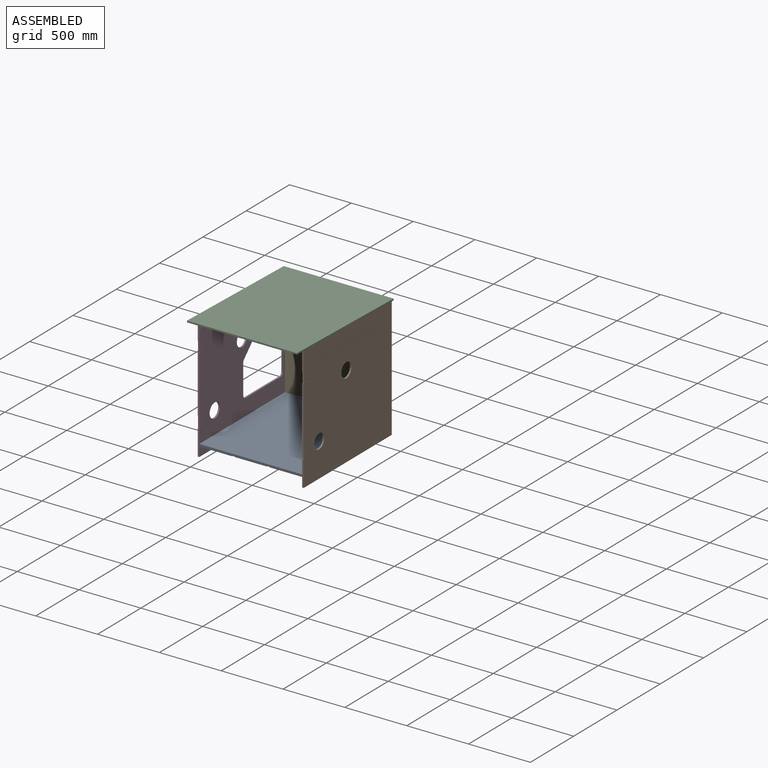
[diagram: assembled view]
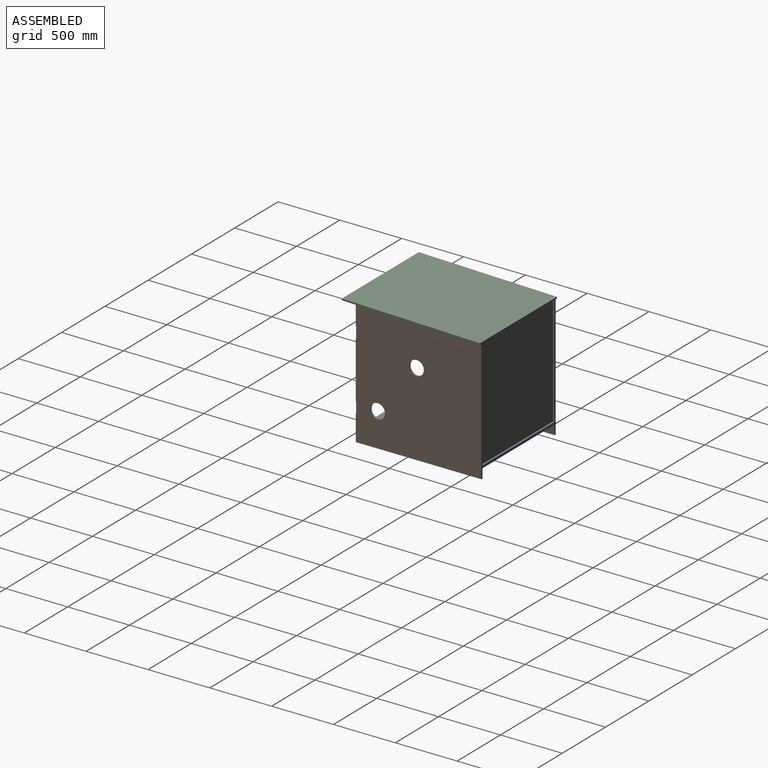
[diagram: assembled view, second angle]
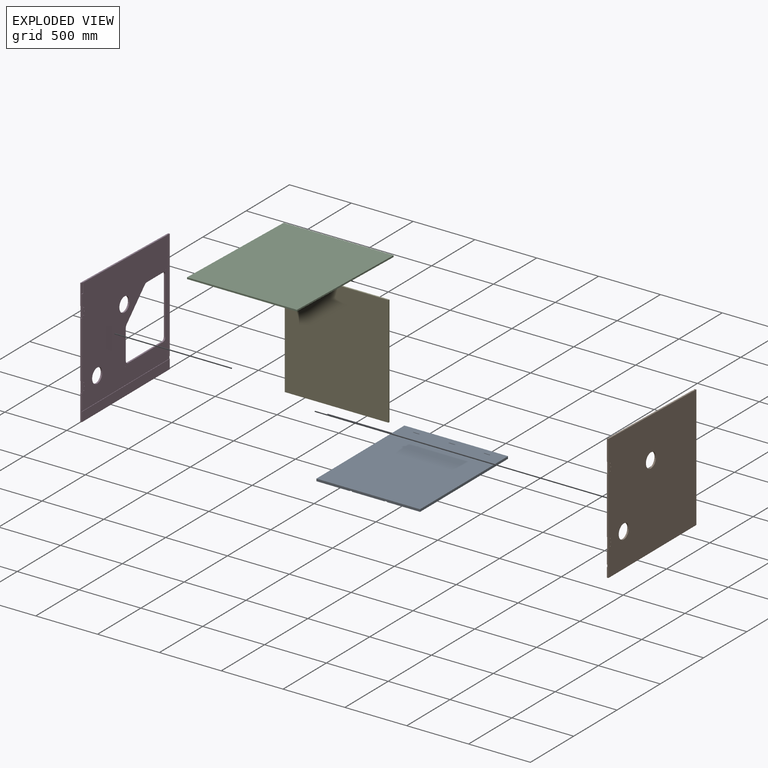
[diagram: exploded view]
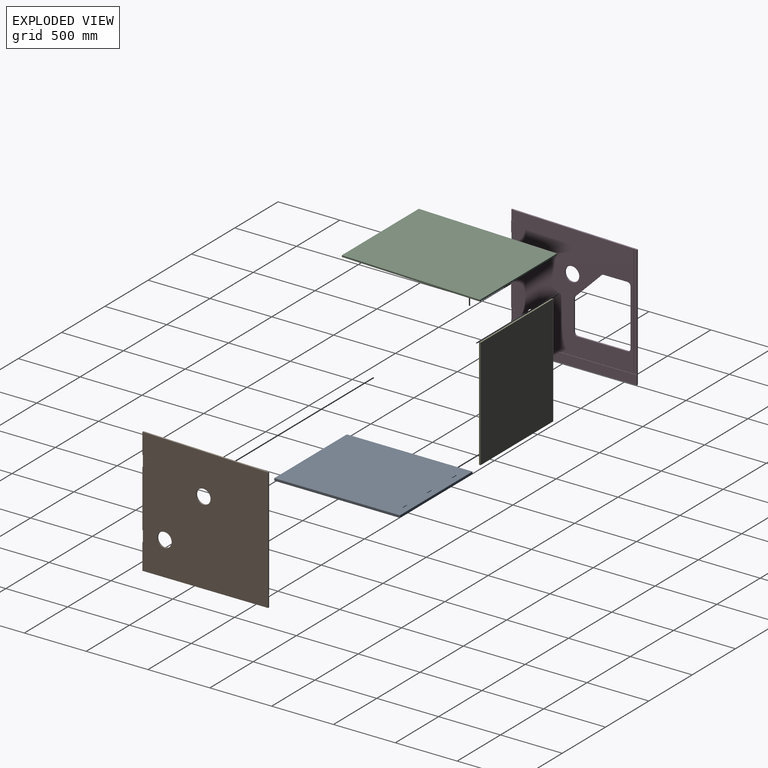
[diagram: exploded view, second angle]
ASSEMBLY  parts=5 mates=4
PART A: 26 faces, bbox 838.2x1016x19.1 mm
  f0: plane 1016x261.93mm, normal (0,0,-1), area 265801.7mm2, adj f2,f4,f9,f11,f18,f19,f20,f21
  f1: plane 1016x268.3mm, normal (0,0,-1), area 272279.1mm2, adj f2,f3,f4,f8,f22,f23,f24,f25
  f2: plane 838.2x19.05mm, normal (0,1,0), area 15841.7mm2, adj f0,f1,f3,f5,f6,f7,f8,f9
  f3: plane 1016x19.05mm, normal (-1,0,0), area 19354.8mm2, adj f1,f2,f4,f6
  f4: plane 838.2x19.05mm, normal (0,-1,0), area 15841.7mm2, adj f0,f1,f3,f5,f6,f7,f8,f9
  f5: plane 1016x19.05mm, normal (1,0,0), area 19354.8mm2, adj f2,f4,f6,f7
  f6: plane 1016x838.2mm, normal (0,0,1), area 850669.4mm2, adj f2,f3,f4,f5,f14,f15,f16,f17
  f7: plane 1016x268.3mm, normal (0,0,-1), area 272279.1mm2, adj f2,f4,f5,f12,f14,f15,f16,f17
  f8: plane 1016x3.18mm, normal (1,0,0), area 3225.8mm2, adj f1,f2,f4,f10
  f9: plane 1016x3.18mm, normal (-1,0,0), area 3225.8mm2, adj f0,f2,f4,f10
  f10: plane 1016x19.84mm, normal (0,0,-1), area 20154.8mm2, adj f2,f4,f8,f9
  f11: plane 1016x3.18mm, normal (1,0,0), area 3225.8mm2, adj f0,f2,f4,f13
  f12: plane 1016x3.18mm, normal (-1,0,0), area 3225.8mm2, adj f2,f4,f7,f13
  f13: plane 1016x19.84mm, normal (0,0,-1), area 20154.8mm2, adj f2,f4,f11,f12
  f14: plane 44.45x19.05mm, normal (0,-1,0), area 846.8mm2, adj f6,f7,f15,f17
  f15: cylinder r=3.17mm len=19.05mm, axis (0,0,-1), area 190mm2, adj f6,f7,f14,f16
  f16: plane 44.45x19.05mm, normal (0,1,0), area 846.8mm2, adj f6,f7,f15,f17
  f17: cylinder r=3.17mm len=19.05mm, axis (0,0,-1), area 190mm2, adj f6,f7,f14,f16
  f18: plane 44.45x19.05mm, normal (0,-1,0), area 846.8mm2, adj f0,f6,f19,f21
  f19: cylinder r=3.17mm len=19.05mm, axis (0,0,-1), area 190mm2, adj f0,f6,f18,f20
  f20: plane 44.45x19.05mm, normal (0,1,0), area 846.8mm2, adj f0,f6,f19,f21
  f21: cylinder r=3.17mm len=19.05mm, axis (0,0,-1), area 190mm2, adj f0,f6,f18,f20
  f22: plane 44.45x19.05mm, normal (0,-1,0), area 846.8mm2, adj f1,f6,f23,f25
  f23: cylinder r=3.17mm len=19.05mm, axis (0,0,-1), area 190mm2, adj f1,f6,f22,f24
  f24: plane 44.45x19.05mm, normal (0,1,0), area 846.8mm2, adj f1,f6,f23,f25
  f25: cylinder r=3.17mm len=19.05mm, axis (0,0,-1), area 190mm2, adj f1,f6,f22,f24
PART B: 30 faces, bbox 12.7x1016x1016 mm
  f0: plane 209.55x12.7mm, normal (0,-1,0), area 2598.3mm2, adj f2,f3,f5,f8,f10,f14,f15,f28
  f1: plane 460.38x12.7mm, normal (0,-1,0), area 5846.8mm2, adj f2,f3,f19,f27
  f2: plane 1016x1016mm, normal (1,0,0), area 996895.6mm2, adj f0,f1,f6,f7,f8,f9,f16,f17
  f3: plane 989.85x919.96mm, normal (-1,0,0), area 875894mm2, adj f0,f1,f6,f7,f10,f11,f16,f17
  f4: plane 894.88x12.7mm, normal (-1,0,0), area 11363mm2, adj f6,f9,f12,f13
  f5: plane 1016x76.2mm, normal (-1,0,0), area 77419.2mm2, adj f0,f8,f9,f14
  f6: plane 1016x25.4mm, normal (0,0.02,1), area 12864.3mm2, adj f2,f3,f4,f7,f9,f11,f12,f15
  f7: plane 168.28x12.7mm, normal (0,-1,0), area 2137.1mm2, adj f2,f3,f6,f18
  f8: plane 1016x12.7mm, normal (0,0,-1), area 12903.2mm2, adj f0,f2,f5,f9
  f9: plane 990.6x12.7mm, normal (0,1,0), area 12517.6mm2, adj f2,f4,f5,f6,f8,f13,f14,f15
  f10: plane 989.85x3.18mm, normal (0,0,-1), area 3142.8mm2, adj f0,f3,f11,f15
  f11: plane 895.22x3.18mm, normal (0,1,0), area 2842.3mm2, adj f3,f6,f10,f15
  f12: plane 894.88x3.18mm, normal (0,-1,0), area 2841.2mm2, adj f4,f6,f13,f15
  f13: plane 12.7x3.18mm, normal (0,0,-1), area 40.3mm2, adj f4,f9,f12,f15
  f14: plane 1016x3.18mm, normal (0,0,1), area 3225.8mm2, adj f0,f5,f9,f15
  f15: plane 1016x915.06mm, normal (-1,0,0), area 32219.4mm2, adj f0,f6,f9,f10,f11,f12,f13,f14
  f16: cylinder r=58.74mm len=117.48mm, axis (1,0,0), area 4687mm2, adj f2,f3
  f17: cylinder r=58.74mm len=117.48mm, axis (1,0,0), area 4687mm2, adj f2,f3
  f18: plane 12.7x3.18mm, normal (0,0,-1), area 40.3mm2, adj f2,f3,f7,f20
  f19: plane 12.7x3.18mm, normal (0,0,1), area 40.3mm2, adj f1,f2,f3,f20
  f20: plane 88.9x12.7mm, normal (0,-1,0), area 1129mm2, adj f2,f3,f18,f19
  f21: cylinder r=3.38mm len=12.7mm, axis (1,0,0), area 269.6mm2, adj f2,f3
  f22: cylinder r=3.38mm len=12.7mm, axis (1,0,0), area 269.6mm2, adj f2,f3
  f23: cylinder r=3.38mm len=12.7mm, axis (1,0,0), area 269.6mm2, adj f2,f3
  f24: cylinder r=3.38mm len=12.7mm, axis (1,0,0), area 269.6mm2, adj f2,f3
  f25: cylinder r=3.38mm len=12.7mm, axis (1,0,0), area 269.6mm2, adj f2,f3
  f26: cylinder r=3.38mm len=12.7mm, axis (1,0,0), area 269.6mm2, adj f2,f3
  f27: plane 12.7x3.18mm, normal (0,0,-1), area 40.3mm2, adj f1,f2,f3,f29
  f28: plane 12.7x3.18mm, normal (0,0,1), area 40.3mm2, adj f0,f2,f3,f29
  f29: plane 88.9x12.7mm, normal (0,-1,0), area 1129mm2, adj f2,f3,f27,f28
PART C: 19 faces, bbox 889x1117.6x12.7 mm
  f0: plane 1117.6x889mm, normal (0,0,1), area 120980.4mm2, adj f2,f3,f4,f5,f10,f11,f15
  f1: plane 831.85x12.47mm, normal (0,0,1), area 10374.3mm2, adj f4,f12,f13,f14
  f2: plane 889x12.7mm, normal (0,1,0), area 11290.3mm2, adj f0,f3,f5,f6
  f3: plane 1117.6x12.7mm, normal (-1,0,0), area 14193.5mm2, adj f0,f2,f4,f6
  f4: plane 889x12.7mm, normal (0,-1,0), area 11204.7mm2, adj f0,f1,f3,f5,f6,f11,f12,f14
  f5: plane 1117.6x12.7mm, normal (1,0,0), area 14193.5mm2, adj f0,f2,f4,f6
  f6: plane 1117.6x889mm, normal (0,0,-1), area 993546.4mm2, adj f2,f3,f4,f5
  f7: plane 970.2x3.18mm, normal (-1,0,0), area 3080.4mm2, adj f8,f16,f17,f18
  f8: plane 831.85x3.18mm, normal (0,1,0), area 2641.1mm2, adj f7,f9,f17,f18
  f9: plane 970.2x3.18mm, normal (1,0,0), area 3080.4mm2, adj f8,f16,f17,f18
  f10: plane 858.82x3.18mm, normal (0,-1,0), area 2726.8mm2, adj f0,f11,f15,f17
  f11: plane 1016x3.18mm, normal (1,0,0), area 3225.8mm2, adj f0,f4,f10,f17
  f12: plane 12.47x3.18mm, normal (-1,0,0), area 39.6mm2, adj f1,f4,f13,f17
  f13: plane 831.85x3.18mm, normal (0,1,0), area 2641.1mm2, adj f1,f12,f14,f17
  f14: plane 12.47x3.18mm, normal (1,0,0), area 39.6mm2, adj f1,f4,f13,f17
  f15: plane 1016x3.18mm, normal (-1,0,0), area 3225.8mm2, adj f0,f4,f10,f17
  f16: plane 831.85x3.18mm, normal (0,-1,0), area 2641.1mm2, adj f7,f9,f17,f18
  f17: plane 1016x858.83mm, normal (0,0,1), area 55127.6mm2, adj f4,f7,f8,f9,f10,f11,f12,f13
  f18: plane 970.2x831.85mm, normal (0,0,1), area 807064mm2, adj f7,f8,f9,f16
PART D: 48 faces, bbox 12.7x1016x1016 mm
  f0: plane 460.38x12.7mm, normal (0,-1,0), area 5846.8mm2, adj f2,f3,f38,f42
  f1: plane 168.28x12.7mm, normal (0,-1,0), area 1883.5mm2, adj f2,f3,f4,f17,f18,f36
  f2: plane 1016x1016mm, normal (-1,0,0), area 791170.5mm2, adj f0,f1,f4,f5,f7,f8,f19,f20
  f3: plane 989.81x919.47mm, normal (1,0,0), area 668582.1mm2, adj f0,f1,f4,f5,f13,f14,f16,f17
  f4: plane 1016x25.4mm, normal (0,0.02,1), area 12801.4mm2, adj f1,f2,f3,f6,f8,f10,f11,f13
  f5: plane 209.55x12.7mm, normal (0,-1,0), area 2598.3mm2, adj f2,f3,f7,f9,f10,f14,f15,f44
  f6: plane 894.88x12.7mm, normal (1,0,0), area 11363mm2, adj f4,f8,f11,f12
  f7: plane 1016x12.7mm, normal (0,0,-1), area 12903.2mm2, adj f2,f5,f8,f9
  f8: plane 990.6x12.7mm, normal (0,1,0), area 12517.6mm2, adj f2,f4,f6,f7,f9,f10,f12,f15
  f9: plane 1016x76.2mm, normal (1,0,0), area 77419.2mm2, adj f5,f7,f8,f15
  f10: plane 1016x915.05mm, normal (1,0,0), area 32226.7mm2, adj f4,f5,f8,f11,f12,f13,f14,f15
  f11: plane 894.88x3.18mm, normal (0,-1,0), area 2841.2mm2, adj f4,f6,f10,f12
  f12: plane 12.7x3.18mm, normal (0,0,-1), area 40.3mm2, adj f6,f8,f10,f11
  f13: plane 895.22x3.18mm, normal (0,1,0), area 2842.3mm2, adj f3,f4,f10,f14
  f14: plane 989.81x3.18mm, normal (0,0,-1), area 3142.7mm2, adj f3,f5,f10,f13
  f15: plane 1016x3.18mm, normal (0,0,1), area 3225.8mm2, adj f5,f8,f9,f10
  f16: plane 79.38x3.18mm, normal (0,-1,0), area 252mm2, adj f3,f4,f17,f18
  f17: plane 19.84x3.18mm, normal (0,0,1), area 63mm2, adj f1,f3,f16,f18
  f18: plane 79.87x19.84mm, normal (1,0,0), area 1579.5mm2, adj f1,f4,f16,f17
  f19: cylinder r=58.74mm len=117.48mm, axis (-1,0,0), area 4687mm2, adj f2,f3
  f20: cylinder r=58.74mm len=117.48mm, axis (-1,0,0), area 4687mm2, adj f2,f3
  f21: plane 213.72x213.72mm, normal (0,0.71,-0.71), area 3838.5mm2, adj f2,f3,f22,f30
  f22: cylinder r=25.4mm len=17.96mm, axis (-1,0,0), area 253.4mm2, adj f2,f3,f21,f23
  f23: plane 192.68x12.7mm, normal (0,0,-1), area 2447mm2, adj f2,f3,f22,f24
  f24: cylinder r=25.4mm len=25.4mm, axis (-1,0,0), area 506.7mm2, adj f2,f3,f23,f25
  f25: plane 457.2x12.7mm, normal (0,-1,0), area 5806.4mm2, adj f2,f3,f24,f26
  f26: cylinder r=25.4mm len=25.4mm, axis (-1,0,0), area 506.7mm2, adj f2,f3,f25,f27
  f27: plane 406.4x12.7mm, normal (0,0,1), area 5161.3mm2, adj f2,f3,f26,f28
  f28: cylinder r=25.4mm len=25.4mm, axis (-1,0,0), area 506.7mm2, adj f2,f3,f27,f29
  f29: plane 243.48x12.7mm, normal (0,1,0), area 3092.2mm2, adj f2,f3,f28,f30
  f30: cylinder r=25.4mm len=17.96mm, axis (-1,0,0), area 253.4mm2, adj f2,f3,f21,f29
  f31: cylinder r=1.59mm len=12.7mm, axis (-1,0,0), area 126.7mm2, adj f2,f3
  f32: cylinder r=1.59mm len=12.7mm, axis (-1,0,0), area 126.7mm2, adj f2,f3
  f33: cylinder r=1.59mm len=12.7mm, axis (-1,0,0), area 126.7mm2, adj f2,f3
  f34: cylinder r=1.59mm len=12.7mm, axis (-1,0,0), area 126.7mm2, adj f2,f3
  f35: cylinder r=1.59mm len=12.7mm, axis (-1,0,0), area 126.7mm2, adj f2,f3
  f36: plane 12.7x3.18mm, normal (0,0,-1), area 40.3mm2, adj f1,f2,f3,f37
  f37: plane 88.9x12.7mm, normal (0,-1,0), area 1129mm2, adj f2,f3,f36,f38
  f38: plane 12.7x3.18mm, normal (0,0,1), area 40.3mm2, adj f0,f2,f3,f37
  f39: cylinder r=3.38mm len=12.7mm, axis (-1,0,0), area 269.6mm2, adj f2,f3
  f40: cylinder r=3.38mm len=12.7mm, axis (-1,0,0), area 269.6mm2, adj f2,f3
  f41: cylinder r=3.38mm len=12.7mm, axis (-1,0,0), area 269.6mm2, adj f2,f3
  f42: plane 12.7x3.18mm, normal (0,0,-1), area 40.3mm2, adj f0,f2,f3,f43
  f43: plane 88.9x12.7mm, normal (0,-1,0), area 1129mm2, adj f2,f3,f42,f44
  f44: plane 12.7x3.18mm, normal (0,0,1), area 40.3mm2, adj f2,f3,f5,f43
  f45: cylinder r=3.38mm len=12.7mm, axis (-1,0,0), area 269.6mm2, adj f2,f3
  f46: cylinder r=3.38mm len=12.7mm, axis (-1,0,0), area 269.6mm2, adj f2,f3
  f47: cylinder r=3.38mm len=12.7mm, axis (-1,0,0), area 269.6mm2, adj f2,f3
PART E: 6 faces, bbox 838.2x12.7x895.4 mm
  f0: plane 838.2x12.7mm, normal (0,0,1), area 10645.1mm2, adj f1,f3,f4,f5
  f1: plane 895.35x12.7mm, normal (-1,0,0), area 11370.9mm2, adj f0,f2,f4,f5
  f2: plane 838.2x12.7mm, normal (0,0,-1), area 10645.1mm2, adj f1,f3,f4,f5
  f3: plane 895.35x12.7mm, normal (1,0,0), area 11370.9mm2, adj f0,f2,f4,f5
  f4: plane 895.35x838.2mm, normal (0,-1,0), area 750482.4mm2, adj f0,f1,f2,f3
  f5: plane 895.35x838.2mm, normal (0,1,0), area 750482.4mm2, adj f0,f1,f2,f3
PLACE A t=(-76.86,-425.8,-551.5)mm
PLACE B t=(323.73,-579.72,9.07)mm
PLACE C rot(axis=(1,0,0),178.6deg) t=(-169.09,-288.62,382.52)mm
PLACE D t=(-520.82,-694.1,362.5)mm
PLACE E t=(-106.28,118.21,165.02)mm
MATE fastened B.f15 <-> A.f5  axis (-1,0,0) through (326.91,-885.09,-541.98)mm
MATE fastened C.f17 <-> D.f4  axis (0,-0.02,-1) through (-508.12,-380.27,375.28)mm
MATE fastened A.f3 <-> D.f10  axis (-1,0,0) through (-511.29,-885.09,-541.98)mm
MATE fastened E.f1 <-> D.f10  axis (-1,0,0) through (-511.29,118.21,-84.62)mm
